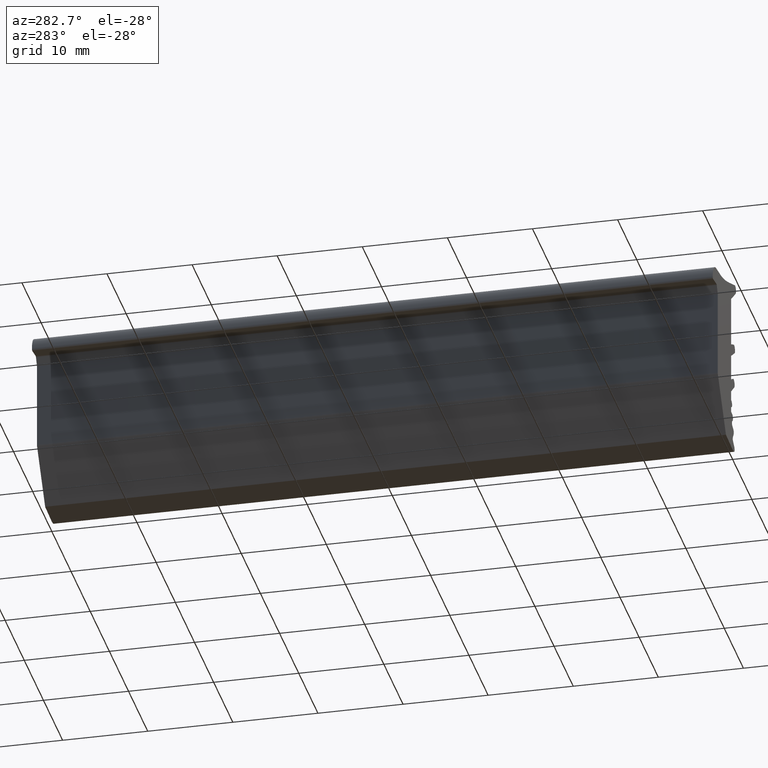
[diagram: clean part render]
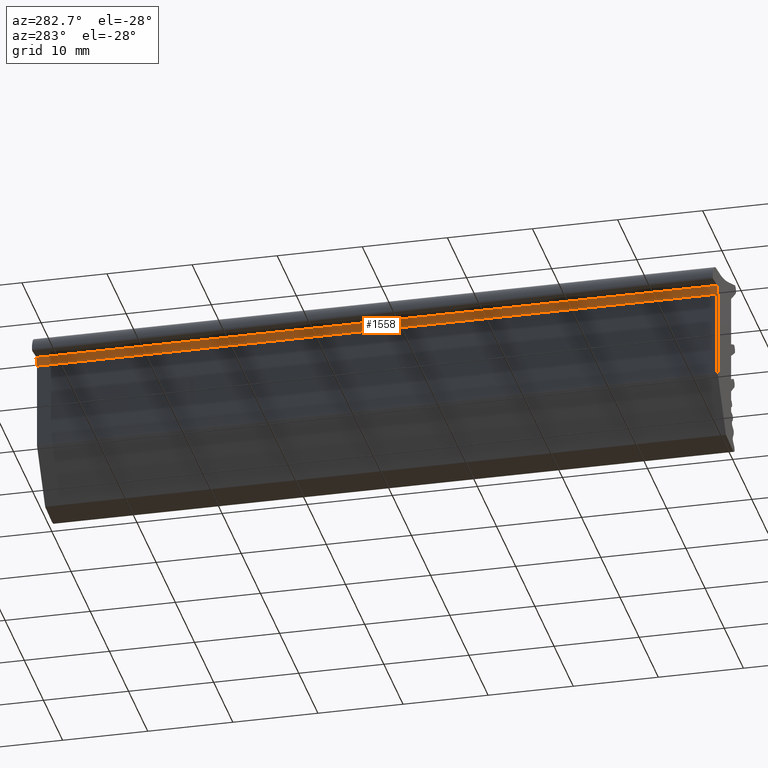
[diagram: same view with one face highlighted and labeled with its STEP entity id]
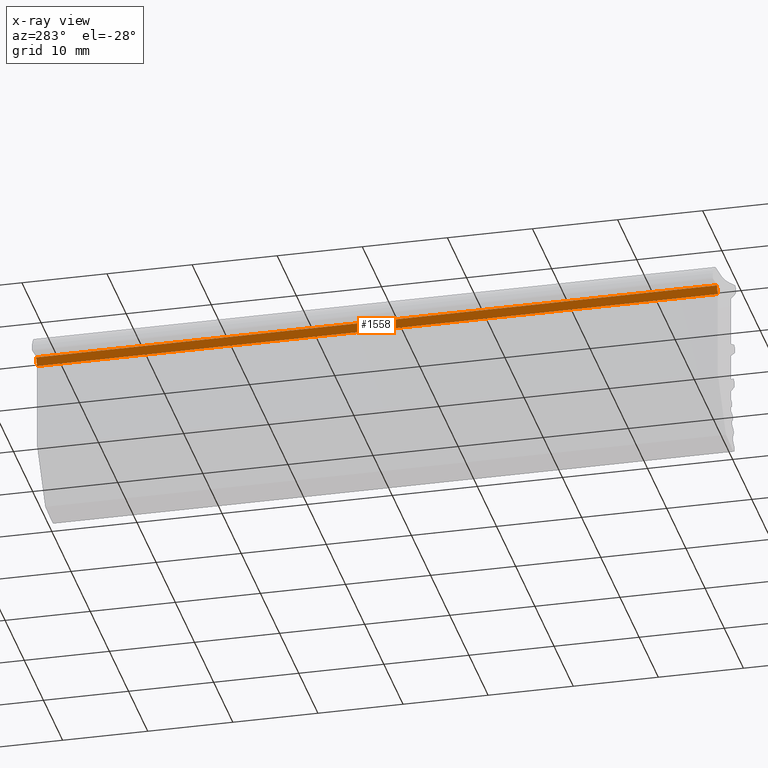
[diagram: x-ray of the same camera — body ghosted, the highlighted face saturated]
A machine part, auxiliary view. The second image highlights one B-rep face of the part: STEP entity #1558.
The next image is the same camera in x-ray: the body ghosted, the highlighted face saturated — about 0% of this face is hidden behind the body in this view.
In plain terms, the highlighted planar face has unit normal (0.8753, 0, 0.4835).
Its self-contained STEP definition (entity closure, byte-faithful):
#105 = ORIENTED_EDGE ( 'NONE', *, *, #2028, .T. ) ;
#225 = ORIENTED_EDGE ( 'NONE', *, *, #1979, .F. ) ;
#226 = ORIENTED_EDGE ( 'NONE', *, *, #1984, .F. ) ;
#262 = EDGE_LOOP ( 'NONE', ( #225, #226, #321, #105 ) ) ;
#321 = ORIENTED_EDGE ( 'NONE', *, *, #1977, .F. ) ;
#414 = DIRECTION ( 'NONE',  ( -0.0000000000000000000, -1.000000000000000000, -0.0000000000000000000 ) ) ;
#415 = CARTESIAN_POINT ( 'NONE',  ( -7.773604013714980000, 80.00200000000001000, 16.17985906082330100 ) ) ;
#544 = DIRECTION ( 'NONE',  ( 0.0000000000000000000, -1.000000000000000000, -0.0000000000000000000 ) ) ;
#545 = CARTESIAN_POINT ( 'NONE',  ( -8.255838749106162700, 80.00000000000000000, 17.05283226651130900 ) ) ;
#555 = DIRECTION ( 'NONE',  ( 0.4835341521672728600, 0.0000000000000000000, -0.8753254958516156800 ) ) ;
#556 = CARTESIAN_POINT ( 'NONE',  ( -6.777426594808190400, 0.0000000000000000000, 14.37651282509519900 ) ) ;
#764 = DIRECTION ( 'NONE',  ( -0.4835341521672728600, -0.0000000000000000000, 0.8753254958516156800 ) ) ;
#893 = CARTESIAN_POINT ( 'NONE',  ( -6.777426594808190400, 80.00000000000000000, 14.37651282509519900 ) ) ;
#949 = CARTESIAN_POINT ( 'NONE',  ( -7.773604013713898200, 80.00000000000500200, 16.17985906082437400 ) ) ;
#1160 = VERTEX_POINT ( 'NONE', #1206 ) ;
#1161 = VERTEX_POINT ( 'NONE', #1211 ) ;
#1162 = VERTEX_POINT ( 'NONE', #1212 ) ;
#1169 = VERTEX_POINT ( 'NONE', #949 ) ;
#1206 = CARTESIAN_POINT ( 'NONE',  ( -8.255838749106050800, 0.0000000000000000000, 17.05283226651111100 ) ) ;
#1211 = CARTESIAN_POINT ( 'NONE',  ( -7.773604013713874200, 0.0000000000000000000, 16.17985906082433400 ) ) ;
#1212 = CARTESIAN_POINT ( 'NONE',  ( -8.255838749106050800, 80.00000000000000000, 17.05283226651111100 ) ) ;
#1316 = DIRECTION ( 'NONE',  ( 0.4835341521672728600, 0.0000000000000000000, -0.8753254958516156800 ) ) ;
#1317 = DIRECTION ( 'NONE',  ( 0.8753254958516156800, 0.0000000000000000000, 0.4835341521672728600 ) ) ;
#1329 = PLANE ( 'NONE',  #1904 ) ;
#1337 = CARTESIAN_POINT ( 'NONE',  ( -6.777426594808190400, 80.00000000000000000, 14.37651282509519900 ) ) ;
#1377 = VECTOR ( 'NONE', #544, 1000.000000000000000 ) ;
#1388 = VECTOR ( 'NONE', #555, 999.9999999999998900 ) ;
#1393 = LINE ( 'NONE', #545, #1377 ) ;
#1399 = LINE ( 'NONE', #415, #1554 ) ;
#1401 = VECTOR ( 'NONE', #764, 999.9999999999998900 ) ;
#1406 = LINE ( 'NONE', #556, #1388 ) ;
#1438 = LINE ( 'NONE', #893, #1401 ) ;
#1554 = VECTOR ( 'NONE', #414, 1000.000000000000000 ) ;
#1558 = ADVANCED_FACE ( 'NONE', ( #1845 ), #1329, .F. ) ;
#1845 = FACE_OUTER_BOUND ( 'NONE', #262, .T. ) ;
#1904 = AXIS2_PLACEMENT_3D ( 'NONE', #1337, #1317, #1316 ) ;
#1977 = EDGE_CURVE ( 'NONE', #1169, #1162, #1438, .T. ) ;
#1979 = EDGE_CURVE ( 'NONE', #1160, #1161, #1406, .T. ) ;
#1984 = EDGE_CURVE ( 'NONE', #1162, #1160, #1393, .T. ) ;
#2028 = EDGE_CURVE ( 'NONE', #1169, #1161, #1399, .T. ) ;